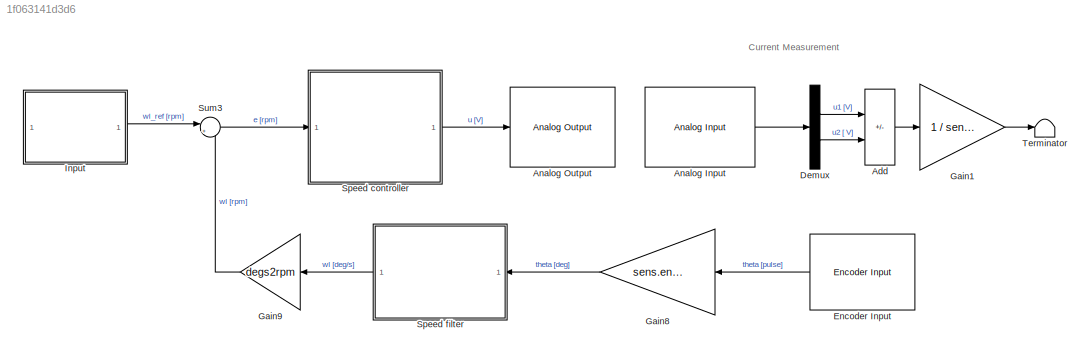
MODEL slx_1f063141d3d6
KIND model
CONFIG AbsTol = auto
CONFIG EnableMultiTasking = off
CONFIG FixedStep = 0.001
CONFIG MaxStep = 0.0001
CONFIG MinStep = auto
CONFIG RelTol = 1e-3
CONFIG SampleTimeConstraint = Unconstrained
CONFIG SolverName = ode3
CONFIG StartTime = 0.0
CONFIG StopTime = 20
BLOCK [Sum] Add
  IconShape = rectangular
  Inputs = +-
BLOCK [Reference] Analog Input  REF=sldrtlib/Analog Input
  AttributesFormatString = National Instruments\nPCIe-6321 [auto]
  SourceBlock = sldrtlib/Analog Input
  SourceType = Simulink Desktop Real-Time Analog Input
BLOCK [Reference] Analog Output  REF=sldrtlib/Analog Output
  AttributesFormatString = National Instruments\nPCIe-6321 [auto]
  SourceBlock = sldrtlib/Analog Output
  SourceType = Simulink Desktop Real-Time Analog Output
BLOCK [Demux] Demux
  Outputs = 2
BLOCK [Reference] Encoder Input  REF=sldrtlib/Encoder Input
  AttributesFormatString = National Instruments\nPCIe-6321 [auto]
  SourceBlock = sldrtlib/Encoder Input
  SourceType = Simulink Desktop Real-Time Encoder Input
BLOCK [Gain] Gain1
  Gain = 1 / sens.curr.Rs
BLOCK [Gain] Gain8
  Gain = sens.enc.pulse2deg
BLOCK [Gain] Gain9
  Gain = degs2rpm
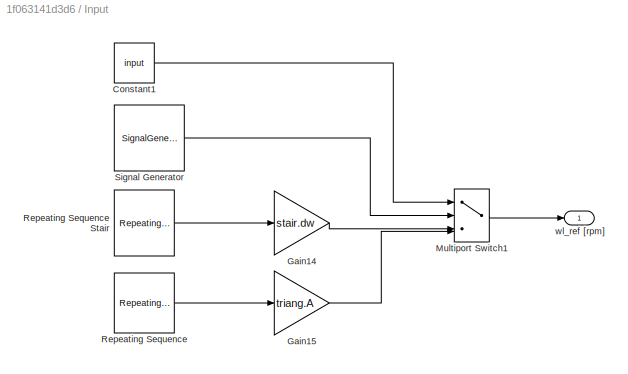
BLOCK [SubSystem] Input
BLOCK [Constant] Input/Constant1
  Value = input
BLOCK [Gain] Input/Gain14
  Gain = stair.dw
BLOCK [Gain] Input/Gain15
  Gain = triang.A
BLOCK [MultiPortSwitch] Input/Multiport Switch1
  InputSameDT = off
  SaturateOnIntegerOverflow = off
BLOCK [Reference] Input/Repeating Sequence  REF=simulink/Sources/Repeating
Sequence
  SourceBlock = simulink/Sources/Repeating\nSequence
  SourceType = Repeating table
BLOCK [Reference] Input/Repeating Sequence Stair  REF=simulink/Sources/Repeating
Sequence
Stair
  SourceBlock = simulink/Sources/Repeating\nSequence\nStair
  SourceType = Repeating Sequence Stair
BLOCK [SignalGenerator] Input/Signal Generator
  Amplitude = step.A
  Frequency = 1 / step.T
  WaveForm = square
BLOCK [Outport] Input/wl_ref [rpm]
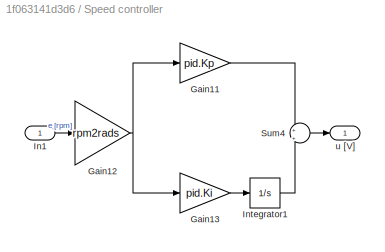
BLOCK [SubSystem] Speed controller
  ShowPortLabels = SignalName
BLOCK [Gain] Speed controller/Gain11
  Gain = pid.Kp
BLOCK [Gain] Speed controller/Gain12
  Gain = rpm2rads
BLOCK [Gain] Speed controller/Gain13
  Gain = pid.Ki
BLOCK [Inport] Speed controller/In1
BLOCK [Integrator] Speed controller/Integrator1
BLOCK [Sum] Speed controller/Sum4
  Inputs = +|+
BLOCK [Outport] Speed controller/u [V]
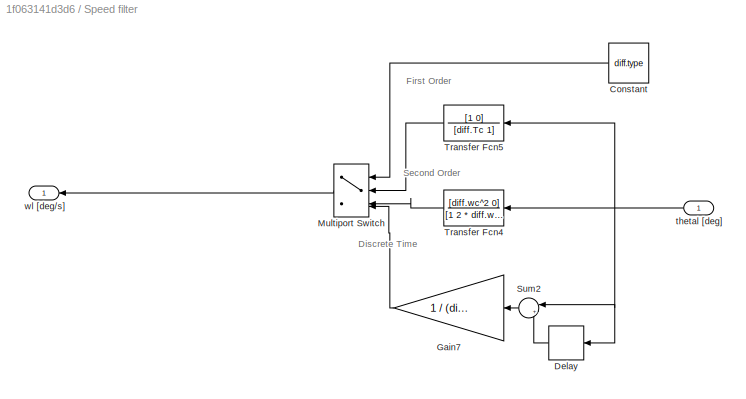
BLOCK [SubSystem] Speed filter
BLOCK [Constant] Speed filter/Constant
  Value = diff.type
BLOCK [Delay] Speed filter/Delay
  DelayLength = diff.N
  InputPortMap = u0
BLOCK [Gain] Speed filter/Gain7
  Gain = 1 / (diff.Ts * diff.N)
BLOCK [MultiPortSwitch] Speed filter/Multiport Switch
  InputSameDT = off
  SaturateOnIntegerOverflow = off
BLOCK [Sum] Speed filter/Sum2
  Inputs = |+-
BLOCK [TransferFcn] Speed filter/Transfer Fcn4
  Denominator = [1 2 * diff.wc * diff.d diff.wc^2]
  Numerator = [diff.wc^2 0]
BLOCK [TransferFcn] Speed filter/Transfer Fcn5
  Denominator = [diff.Tc 1]
  Numerator = [1 0]
BLOCK [Inport] Speed filter/thetal [deg]
BLOCK [Outport] Speed filter/wl [deg//s]
BLOCK [Sum] Sum3
  Inputs = |+-
BLOCK [Terminator] Terminator
ANNOTATION (root): Current Measurement
ANNOTATION Speed filter: Discrete Time
ANNOTATION Speed filter: First Order
ANNOTATION Speed filter: Second Order
LINE Add:1 -> Gain1:1
LINE Analog Input:1 -> Demux:1
LINE Demux:1 -> Add:1
LINE Demux:2 -> Add:2
LINE Encoder Input:1 -> Gain8:1
LINE Gain1:1 -> Terminator:1
LINE Gain8:1 -> Speed filter:1
LINE Gain9:1 -> Sum3:2
LINE Input/Constant1:1 -> Input/Multiport Switch1:1
LINE Input/Gain14:1 -> Input/Multiport Switch1:3
LINE Input/Gain15:1 -> Input/Multiport Switch1:4
LINE Input/Multiport Switch1:1 -> Input/wl_ref [rpm]:1
LINE Input/Repeating Sequence Stair:1 -> Input/Gain14:1
LINE Input/Repeating Sequence:1 -> Input/Gain15:1
LINE Input/Signal Generator:1 -> Input/Multiport Switch1:2
LINE Input:1 -> Sum3:1
LINE Speed controller/Gain11:1 -> Speed controller/Sum4:1
NET Speed controller/Gain12:1 -> Speed controller/Gain11:1, Speed controller/Gain13:1
LINE Speed controller/Gain13:1 -> Speed controller/Integrator1:1
LINE Speed controller/In1:1 -> Speed controller/Gain12:1
LINE Speed controller/Integrator1:1 -> Speed controller/Sum4:2
LINE Speed controller/Sum4:1 -> Speed controller/u [V]:1
LINE Speed controller:1 -> Analog Output:1
LINE Speed filter/Constant:1 -> Speed filter/Multiport Switch:1
LINE Speed filter/Delay:1 -> Speed filter/Sum2:2
LINE Speed filter/Gain7:1 -> Speed filter/Multiport Switch:4
LINE Speed filter/Multiport Switch:1 -> Speed filter/wl [deg//s]:1
LINE Speed filter/Sum2:1 -> Speed filter/Gain7:1
LINE Speed filter/Transfer Fcn4:1 -> Speed filter/Multiport Switch:3
LINE Speed filter/Transfer Fcn5:1 -> Speed filter/Multiport Switch:2
NET Speed filter/thetal [deg]:1 -> Speed filter/Delay:1, Speed filter/Sum2:1, Speed filter/Transfer Fcn4:1, Speed filter/Transfer Fcn5:1
LINE Speed filter:1 -> Gain9:1
LINE Sum3:1 -> Speed controller:1
note: NET lines group one-source signal fan-out (src -> all destinations, sorted); 1:1 wires keep LINE
